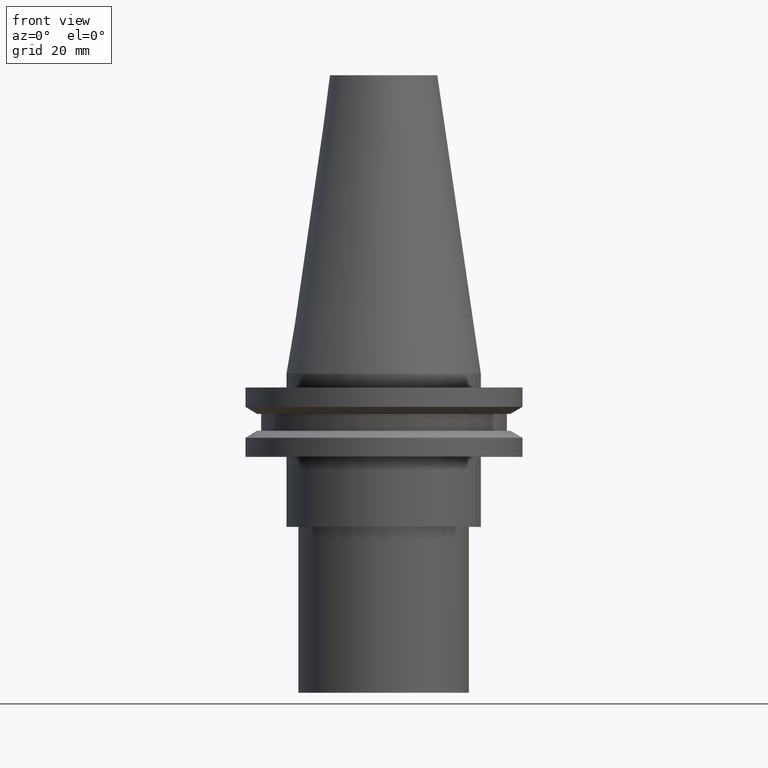
[diagram: clean part render]
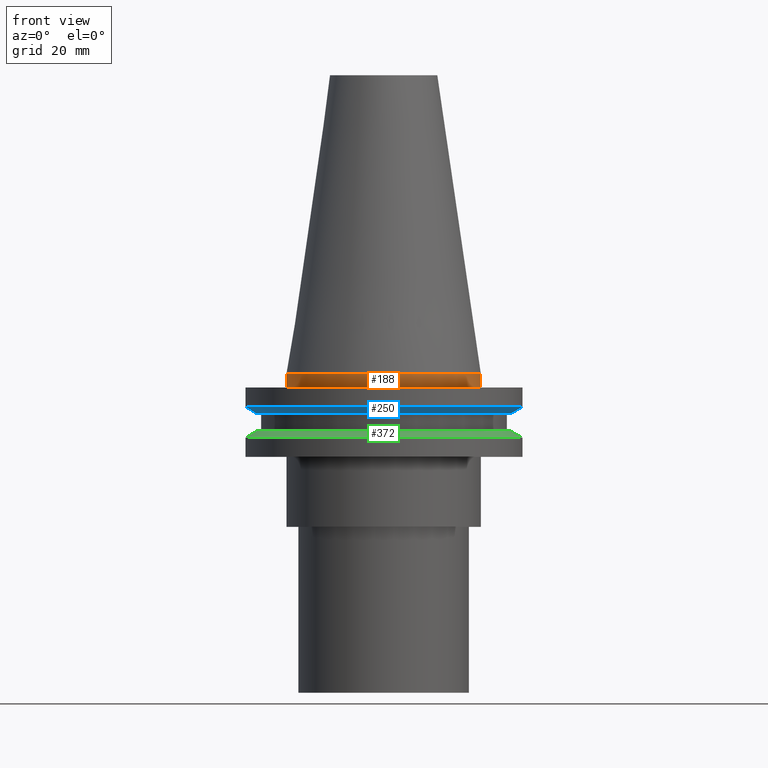
[diagram: same view with three faces highlighted in distinct colors, each labeled with its STEP entity id]
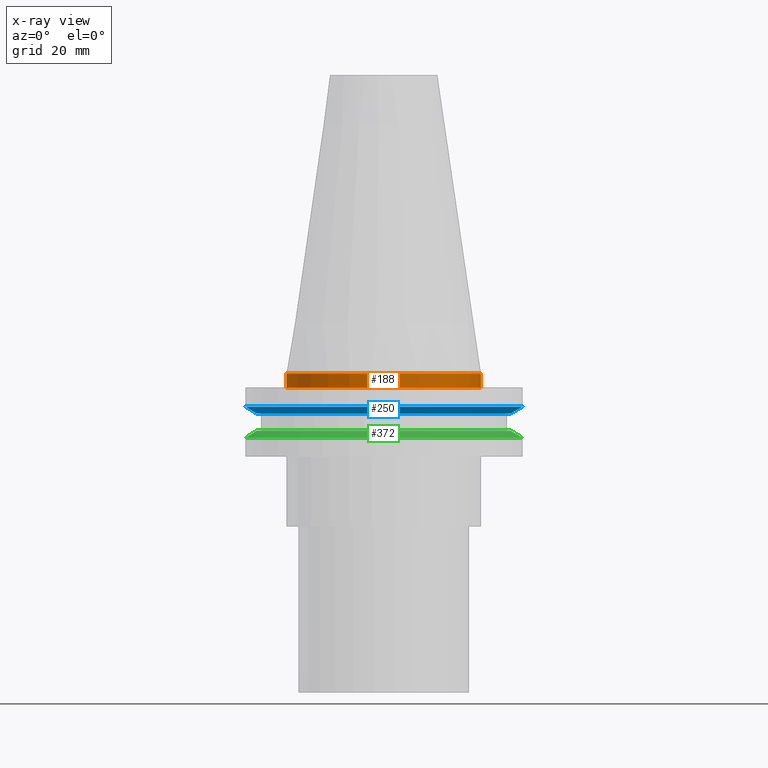
[diagram: x-ray of the same camera — body ghosted, the three highlighted faces saturated]
A machine part, front view with three faces highlighted in distinct colors.
The next image is the same camera in x-ray (body ghosted, the three faces saturated) — at least one of them is partly hidden behind the body in this view.
Their STEP definitions:

[orange] entity #188 — the highlighted cylindrical surface (bore or boss wall) has radius 22.225 mm, axis along (-0, -0, 1).
#22 = ORIENTED_EDGE ( 'NONE', *, *, #164, .F. ) ;
#57 = EDGE_LOOP ( 'NONE', ( #295 ) ) ;
#68 = CARTESIAN_POINT ( 'NONE',  ( 0.000000000000000000, 0.000000000000000000, 68.25000000000000000 ) ) ;
#99 = CIRCLE ( 'NONE', #308, 22.22500000000000142 ) ;
#104 = CARTESIAN_POINT ( 'NONE',  ( 0.000000000000000000, 0.000000000000000000, -3.174999999999997158 ) ) ;
#139 = VERTEX_POINT ( 'NONE', #171 ) ;
#151 = DIRECTION ( 'NONE',  ( -0.000000000000000000, -0.000000000000000000, 1.000000000000000000 ) ) ;
#163 = DIRECTION ( 'NONE',  ( -0.000000000000000000, -0.000000000000000000, 1.000000000000000000 ) ) ;
#164 = EDGE_CURVE ( 'NONE', #139, #139, #190, .T. ) ;
#171 = CARTESIAN_POINT ( 'NONE',  ( 22.22500000000000142, 0.000000000000000000, 0.000000000000000000 ) ) ;
#176 = AXIS2_PLACEMENT_3D ( 'NONE', #68, #301, #273 ) ;
#188 = ADVANCED_FACE ( 'NONE', ( #338, #280 ), #219, .T. ) ;
#190 = CIRCLE ( 'NONE', #393, 22.22500000000000142 ) ;
#210 = CARTESIAN_POINT ( 'NONE',  ( 0.000000000000000000, 0.000000000000000000, 0.000000000000000000 ) ) ;
#214 = DIRECTION ( 'NONE',  ( 1.000000000000000000, 0.000000000000000000, 0.000000000000000000 ) ) ;
#219 = CYLINDRICAL_SURFACE ( 'NONE', #176, 22.22500000000000142 ) ;
#269 = CARTESIAN_POINT ( 'NONE',  ( 22.22500000000000142, 0.000000000000000000, -3.174999999999997158 ) ) ;
#273 = DIRECTION ( 'NONE',  ( 1.000000000000000000, 0.000000000000000000, 0.000000000000000000 ) ) ;
#280 = FACE_OUTER_BOUND ( 'NONE', #57, .T. ) ;
#292 = EDGE_LOOP ( 'NONE', ( #22 ) ) ;
#295 = ORIENTED_EDGE ( 'NONE', *, *, #329, .T. ) ;
#301 = DIRECTION ( 'NONE',  ( -0.000000000000000000, -0.000000000000000000, 1.000000000000000000 ) ) ;
#308 = AXIS2_PLACEMENT_3D ( 'NONE', #104, #163, #380 ) ;
#329 = EDGE_CURVE ( 'NONE', #381, #381, #99, .T. ) ;
#338 = FACE_OUTER_BOUND ( 'NONE', #292, .T. ) ;
#380 = DIRECTION ( 'NONE',  ( 1.000000000000000000, 0.000000000000000000, 0.000000000000000000 ) ) ;
#381 = VERTEX_POINT ( 'NONE', #269 ) ;
#393 = AXIS2_PLACEMENT_3D ( 'NONE', #210, #151, #214 ) ;

[blue] entity #250 — the highlighted conical surface has half-angle 60 deg.
#18 = DIRECTION ( 'NONE',  ( 1.000000000000000000, 0.000000000000000000, 0.000000000000000000 ) ) ;
#43 = DIRECTION ( 'NONE',  ( 1.000000000000000000, 0.000000000000000000, 0.000000000000000000 ) ) ;
#45 = CARTESIAN_POINT ( 'NONE',  ( 0.000000000000000000, 0.000000000000000000, -9.205000000000005400 ) ) ;
#48 = EDGE_LOOP ( 'NONE', ( #88 ) ) ;
#88 = ORIENTED_EDGE ( 'NONE', *, *, #156, .T. ) ;
#112 = AXIS2_PLACEMENT_3D ( 'NONE', #224, #311, #18 ) ;
#120 = CONICAL_SURFACE ( 'NONE', #323, 28.97919780457007732, 1.047197551196598297 ) ;
#121 = ORIENTED_EDGE ( 'NONE', *, *, #282, .F. ) ;
#125 = DIRECTION ( 'NONE',  ( 1.000000000000000000, 0.000000000000000000, 0.000000000000000000 ) ) ;
#141 = CARTESIAN_POINT ( 'NONE',  ( 28.97919780457007732, 0.000000000000000000, -9.205000000000005400 ) ) ;
#156 = EDGE_CURVE ( 'NONE', #298, #298, #350, .T. ) ;
#162 = AXIS2_PLACEMENT_3D ( 'NONE', #217, #370, #125 ) ;
#174 = EDGE_LOOP ( 'NONE', ( #121 ) ) ;
#189 = FACE_OUTER_BOUND ( 'NONE', #174, .T. ) ;
#217 = CARTESIAN_POINT ( 'NONE',  ( 0.000000000000000000, 0.000000000000000000, -9.205000000000005400 ) ) ;
#224 = CARTESIAN_POINT ( 'NONE',  ( 0.000000000000000000, 0.000000000000000000, -7.605276606597335842 ) ) ;
#234 = CARTESIAN_POINT ( 'NONE',  ( 31.75000000000000000, 0.000000000000000000, -7.605276606597335842 ) ) ;
#250 = ADVANCED_FACE ( 'NONE', ( #189, #349 ), #120, .T. ) ;
#257 = CIRCLE ( 'NONE', #112, 31.75000000000000000 ) ;
#282 = EDGE_CURVE ( 'NONE', #351, #351, #257, .T. ) ;
#298 = VERTEX_POINT ( 'NONE', #141 ) ;
#311 = DIRECTION ( 'NONE',  ( -0.000000000000000000, -0.000000000000000000, 1.000000000000000000 ) ) ;
#312 = DIRECTION ( 'NONE',  ( -0.000000000000000000, -0.000000000000000000, 1.000000000000000000 ) ) ;
#323 = AXIS2_PLACEMENT_3D ( 'NONE', #45, #312, #43 ) ;
#349 = FACE_BOUND ( 'NONE', #48, .T. ) ;
#350 = CIRCLE ( 'NONE', #162, 28.97919780457007732 ) ;
#351 = VERTEX_POINT ( 'NONE', #234 ) ;
#370 = DIRECTION ( 'NONE',  ( -0.000000000000000000, -0.000000000000000000, 1.000000000000000000 ) ) ;

[green] entity #372 — the highlighted conical surface has half-angle 60 deg.
#36 = CIRCLE ( 'NONE', #212, 31.75000000000000000 ) ;
#40 = EDGE_CURVE ( 'NONE', #353, #353, #36, .T. ) ;
#52 = AXIS2_PLACEMENT_3D ( 'NONE', #240, #296, #262 ) ;
#78 = ORIENTED_EDGE ( 'NONE', *, *, #40, .T. ) ;
#79 = FACE_OUTER_BOUND ( 'NONE', #235, .T. ) ;
#84 = EDGE_CURVE ( 'NONE', #385, #385, #127, .T. ) ;
#91 = CARTESIAN_POINT ( 'NONE',  ( 0.000000000000000000, 0.000000000000000000, -13.05499999999999794 ) ) ;
#114 = CARTESIAN_POINT ( 'NONE',  ( 28.97919780457008088, 0.000000000000000000, -13.05499999999999794 ) ) ;
#119 = EDGE_LOOP ( 'NONE', ( #322 ) ) ;
#127 = CIRCLE ( 'NONE', #222, 28.97919780457008088 ) ;
#149 = DIRECTION ( 'NONE',  ( -0.000000000000000000, -0.000000000000000000, 1.000000000000000000 ) ) ;
#167 = CARTESIAN_POINT ( 'NONE',  ( 31.75000000000000000, 0.000000000000000000, -14.65472339340266572 ) ) ;
#205 = DIRECTION ( 'NONE',  ( -0.000000000000000000, -0.000000000000000000, 1.000000000000000000 ) ) ;
#212 = AXIS2_PLACEMENT_3D ( 'NONE', #238, #205, #387 ) ;
#222 = AXIS2_PLACEMENT_3D ( 'NONE', #91, #149, #332 ) ;
#235 = EDGE_LOOP ( 'NONE', ( #78 ) ) ;
#238 = CARTESIAN_POINT ( 'NONE',  ( 0.000000000000000000, 0.000000000000000000, -14.65472339340266572 ) ) ;
#240 = CARTESIAN_POINT ( 'NONE',  ( 0.000000000000000000, 0.000000000000000000, -14.65472339340266572 ) ) ;
#262 = DIRECTION ( 'NONE',  ( -1.000000000000000000, 0.000000000000000000, 0.000000000000000000 ) ) ;
#276 = CONICAL_SURFACE ( 'NONE', #52, 31.75000000000000000, 1.047197551196597853 ) ;
#291 = FACE_BOUND ( 'NONE', #119, .T. ) ;
#296 = DIRECTION ( 'NONE',  ( 0.000000000000000000, 0.000000000000000000, -1.000000000000000000 ) ) ;
#322 = ORIENTED_EDGE ( 'NONE', *, *, #84, .F. ) ;
#332 = DIRECTION ( 'NONE',  ( 1.000000000000000000, 0.000000000000000000, 0.000000000000000000 ) ) ;
#353 = VERTEX_POINT ( 'NONE', #167 ) ;
#372 = ADVANCED_FACE ( 'NONE', ( #291, #79 ), #276, .T. ) ;
#385 = VERTEX_POINT ( 'NONE', #114 ) ;
#387 = DIRECTION ( 'NONE',  ( 1.000000000000000000, 0.000000000000000000, 0.000000000000000000 ) ) ;